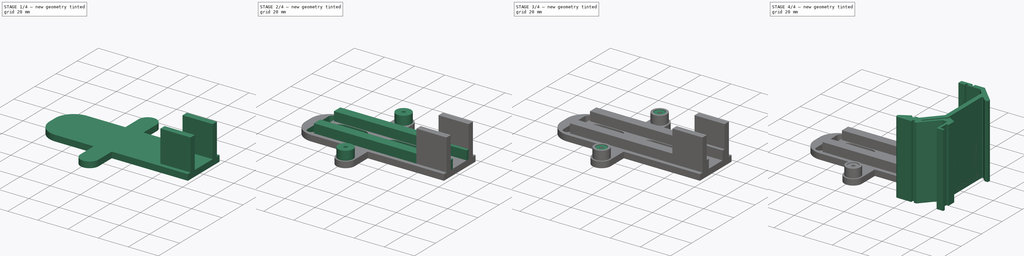
[diagram: build sequence overview — one tinted view per stage of 4, left to right]
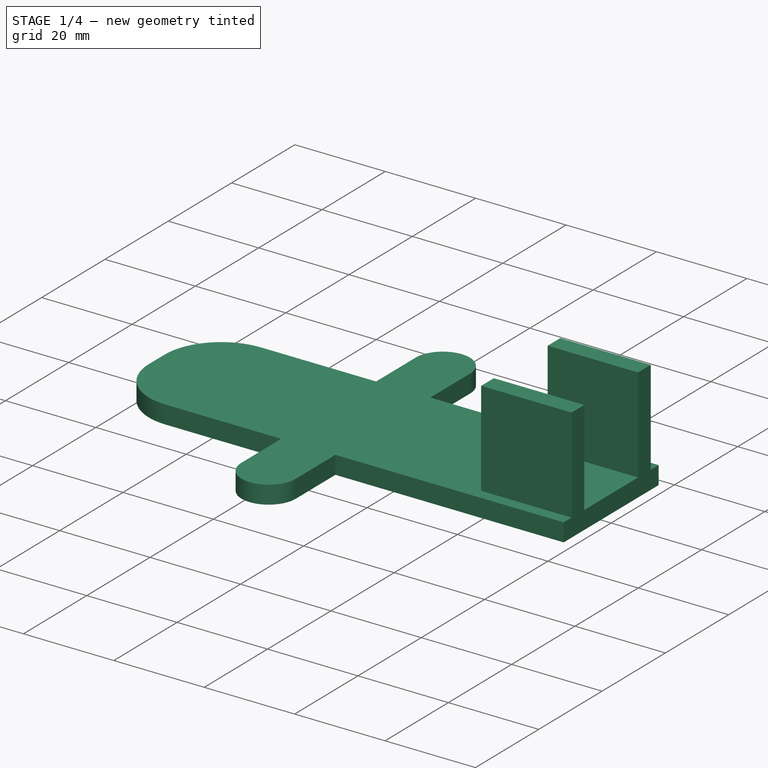
[diagram: stage 1 of 4 — iso view after this stage's code; geometry added in this stage tinted green]
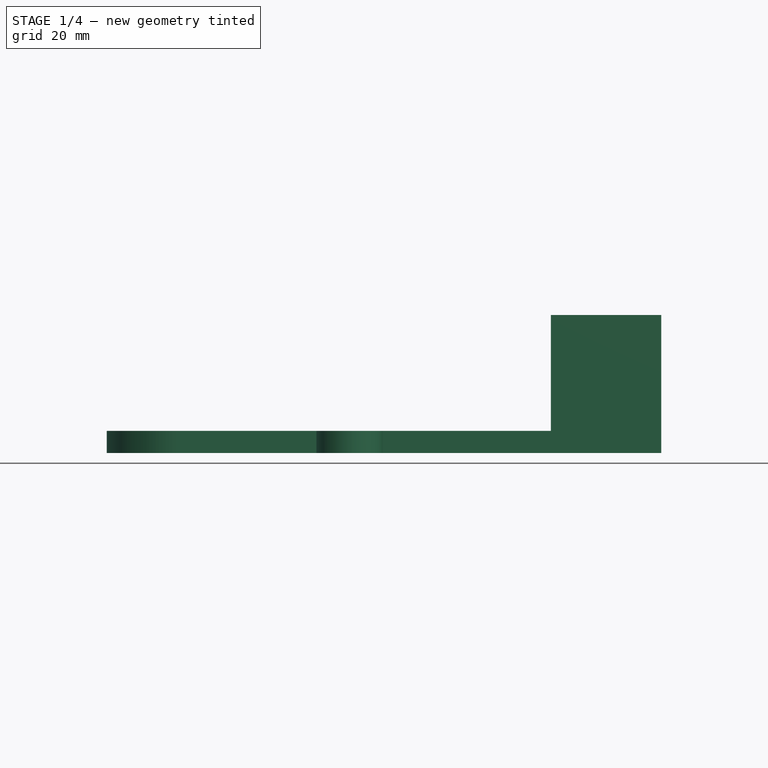
[diagram: stage 1 of 4 — front view after this stage's code; geometry added in this stage tinted green]
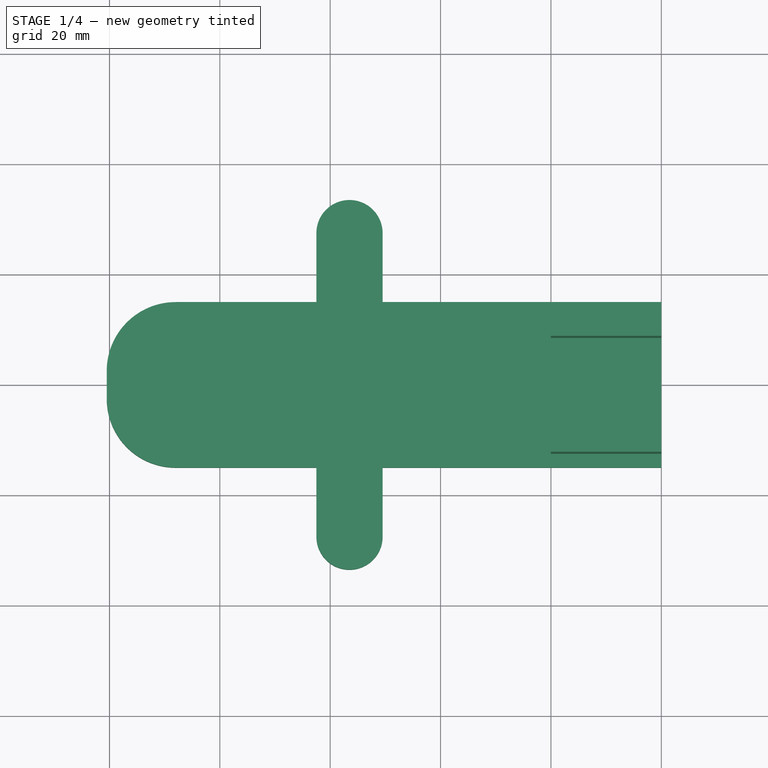
[diagram: stage 1 of 4 — top view after this stage's code; geometry added in this stage tinted green]
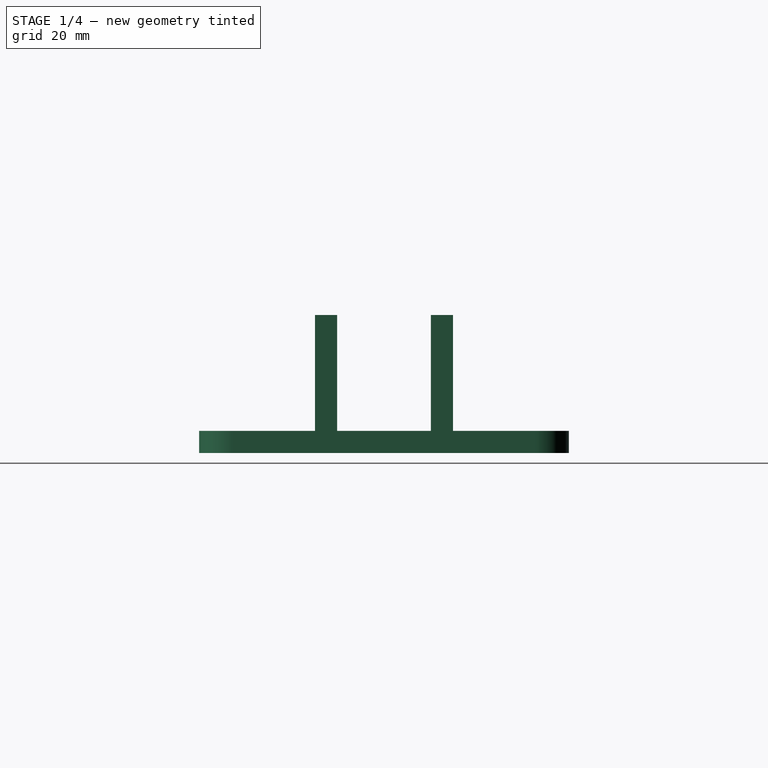
[diagram: stage 1 of 4 — right view after this stage's code; geometry added in this stage tinted green]
FCSTD DOCUMENT  (FreeCAD 0.18R4 (GitTag))
Label: pi_box_din
License: CC-BY 3.0
LicenseURL: http://creativecommons.org/licenses/by/3.0/
objects: Sketcher::SketchObject×8, PartDesign::Pad×6, PartDesign::Hole×3, Spreadsheet::Sheet×1, PartDesign::Pocket×1, PartDesign::Fillet×1, PartDesign::Body×1, App::Part×1, App::DocumentObjectGroup×1
note: 30 computed .brp shape members not serialized (recipe doc carries the construction recipe); baked Part::Feature solids carry a one-line shape summary decoded from their .brp

FEATURE [Spreadsheet::Sheet] Spreadsheet
  cells = A1=pi_box; B1=maat; A2=hoogte; B2(box_h)==31mm; A3=breedte; B3(box_b)==63mm; A4=lengte; B4(box_l)==95mm; A6=schroef; B6(gat_d)==3mm; A7=gat afstand hh; B7(gat_hh)==55mm; A8=gat eth kant; B8(gat_rand)==15mm; A9=gat bevel d; B9(gat_d_bevel)==6mm; A10=gat bevel h; B10(gat_h_bevel)==0.5mm; A11=voetje h; B11(voetje_h)==0.8mm; A12=voetje d; B12(voetje_d)==15mm; A13=voetje rand; B13(voetje_rand)==11mm
FEATURE [Sketcher::SketchObject] Sketch001  label="mountbase000"
  MapMode = 5
  Support = -> [XY_Plane001]
  expr: Constraints[14] = Spreadsheet.box_b / 2
  expr: Constraints[5] = Spreadsheet.box_b / 2 + 25mm
  sketch-geometry (7):
    g0: LineSegment StartX=-88 StartY=15 StartZ=0 EndX=0 EndY=15 EndZ=0
    g1: LineSegment StartX=0 StartY=15 StartZ=0 EndX=0 EndY=-15 EndZ=0
    g2: LineSegment StartX=0 StartY=-15 StartZ=0 EndX=-88 EndY=-15 EndZ=0
    g3: LineSegment StartX=-100.5 StartY=-2.5 StartZ=0 EndX=-100.5 EndY=2.5 EndZ=0
    g4: LineSegment [constr] StartX=-56.5 StartY=50 StartZ=0 EndX=-56.5 EndY=-50 EndZ=0
    g5: ArcOfCircle CenterX=-88 CenterY=2.5 CenterZ=0 NormalX=0 NormalY=0 NormalZ=1 AngleXU=0 Radius=12.5 StartAngle=1.5708 EndAngle=3.14159
    g6: ArcOfCircle CenterX=-88 CenterY=-2.5 CenterZ=0 NormalX=0 NormalY=0 NormalZ=1 AngleXU=0 Radius=12.5 StartAngle=3.14159 EndAngle=4.71239
  constraints (17):
    c: Coincident(g0,g1)
    c: Coincident(g1,g2)
    c: Horizontal(g0)
    c: Horizontal(g2)
    c: DistanceX(g1,g-1) = 0
    c: DistanceX(g4,g-1) = 56.5
    c: Symmetric(g1,g0,g-1)
    c: DistanceY(g1,g-1) = 15
    c: Tangent(g0,g5) = 1.5708
    c: Tangent(g3,g5) = 1.5708
    c: Tangent(g3,g6) = 1.5708
    c: Tangent(g2,g6) = 1.5708
    c: Symmetric(g6,g5,g-1)
    c: Symmetric(g4,g4,g-1)
    c: DistanceX(g2,g4) = 31.5
    c: Distance(g3,g3) = 5
    c: Distance(g4) = 100
FEATURE [Sketcher::SketchObject] Sketch002  label="mountbase001"
  MapMode = 5
  Support = -> [XY_Plane001]
  expr: Constraints[6] = Spreadsheet.box_b / 2 + 25mm
  expr: Constraints[9] = Spreadsheet.gat_hh / 2
  expr: Constraints[10] = Spreadsheet.gat_hh
  sketch-geometry (5):
    g0: ArcOfCircle CenterX=-56.5 CenterY=27.5 CenterZ=0 NormalX=0 NormalY=0 NormalZ=1 AngleXU=0 Radius=6 StartAngle=1e-16 EndAngle=3.14159
    g1: ArcOfCircle CenterX=-56.5 CenterY=-27.5 CenterZ=0 NormalX=0 NormalY=0 NormalZ=1 AngleXU=0 Radius=6 StartAngle=3.14159 EndAngle=6.28319
    g2: LineSegment StartX=-62.5 StartY=27.5 StartZ=0 EndX=-62.5 EndY=-27.5 EndZ=0
    g3: LineSegment StartX=-50.5 StartY=27.5 StartZ=0 EndX=-50.5 EndY=-27.5 EndZ=0
    g4: LineSegment [constr] StartX=-56.5 StartY=50 StartZ=0 EndX=-56.5 EndY=-50 EndZ=0
  constraints (13):
    c: Tangent(g0,g3) = 1.5708
    c: Tangent(g0,g2) = -1.5708
    c: Tangent(g2,g1) = -1.5708
    c: Tangent(g3,g1) = 1.5708
    c: Vertical(g2)
    c: Equal(g0,g1)
    c: DistanceX(g4,g-1) = 56.5
    c: DistanceX(g4,g0) = 0
    c: DistanceX(g0,g0) = 12
    c: DistanceY(g-1,g0) = 27.5
    c: DistanceY(g1,g0) = 55
    c: Symmetric(g4,g4,g-1)
    c: Distance(g4) = 100
FEATURE [PartDesign::Pad] Pad001  label="Pad000"
  Length = 4
  Length2 = 100
  Profile = -> Sketch001
  Type = 0
FEATURE [PartDesign::Pad] Pad002  label="Pad001"
  BaseFeature = -> Pad001
  Length = 4
  Length2 = 100
  Profile = -> Sketch002
  Type = 0
FEATURE [Sketcher::SketchObject] Sketch003  label="mountbase002"
  MapMode = 5
  Support = -> [XY_Plane001]
  sketch-geometry (8):
    g0: LineSegment StartX=-20 StartY=-8.5 StartZ=0 EndX=0 EndY=-8.5 EndZ=0
    g1: LineSegment StartX=0 StartY=-8.5 StartZ=0 EndX=0 EndY=-12.5 EndZ=0
    g2: LineSegment StartX=0 StartY=-12.5 StartZ=0 EndX=-20 EndY=-12.5 EndZ=0
    g3: LineSegment StartX=-20 StartY=-12.5 StartZ=0 EndX=-20 EndY=-8.5 EndZ=0
    g4: LineSegment StartX=-20 StartY=12.5 StartZ=0 EndX=0 EndY=12.5 EndZ=0
    g5: LineSegment StartX=0 StartY=12.5 StartZ=0 EndX=0 EndY=8.5 EndZ=0
    g6: LineSegment StartX=0 StartY=8.5 StartZ=0 EndX=-20 EndY=8.5 EndZ=0
    g7: LineSegment StartX=-20 StartY=8.5 StartZ=0 EndX=-20 EndY=12.5 EndZ=0
  constraints (23):
    c: Coincident(g0,g1)
    c: Coincident(g1,g2)
    c: Coincident(g2,g3)
    c: Coincident(g3,g0)
    c: Horizontal(g0)
    c: Horizontal(g2)
    c: Vertical(g1)
    c: Vertical(g3)
    c: Coincident(g4,g5)
    c: Coincident(g5,g6)
    c: Coincident(g6,g7)
    c: Coincident(g7,g4)
    c: Horizontal(g4)
    c: Horizontal(g6)
    c: Vertical(g5)
    c: Vertical(g7)
    c: Symmetric(g5,g0,g-1)
    c: Distance(g5) = 4
    c: Distance(g1) = 4
    c: DistanceX(g-1,g4) = 0
    c: Distance(g6) = 20
    c: Distance(g0) = 20
    c: DistanceY(g2,g4) = 25
FEATURE [PartDesign::Pad] Pad003  label="Pad002"
  BaseFeature = -> Pad002
  Length = 25
  Length2 = 100
  Profile = -> Sketch003
  Type = 0
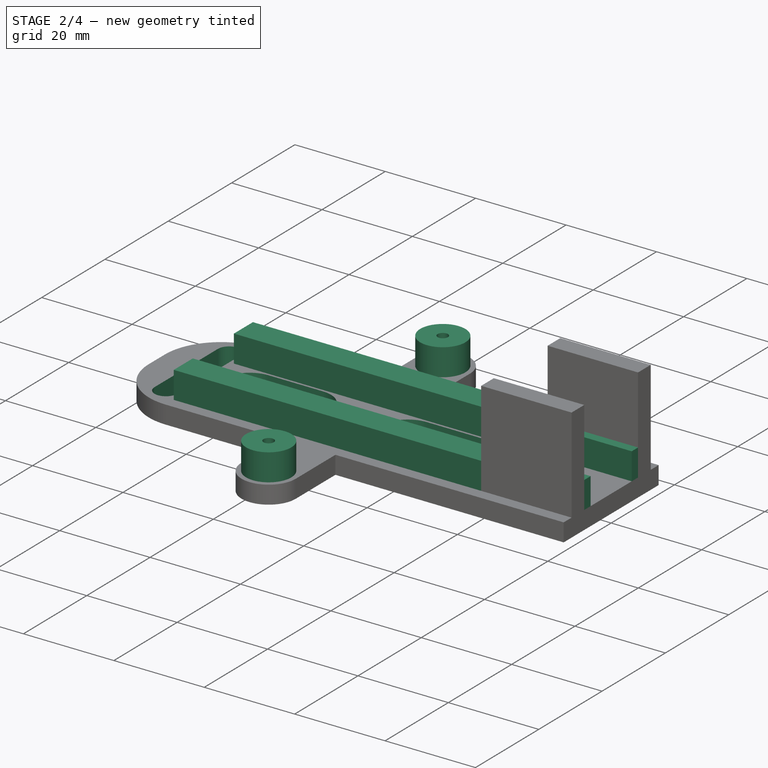
[diagram: stage 2 of 4 — iso view after this stage's code; geometry added in this stage tinted green]
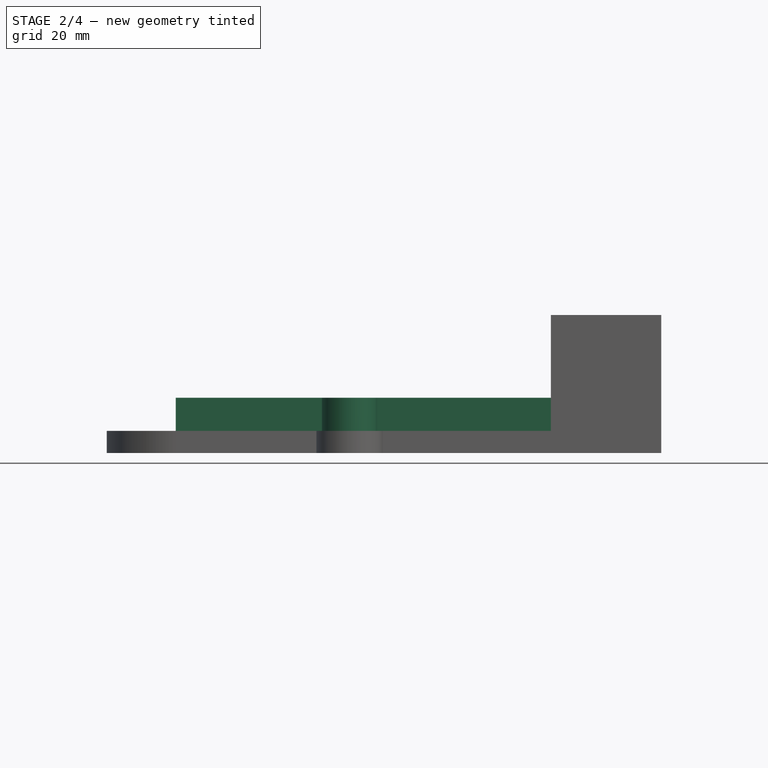
[diagram: stage 2 of 4 — front view after this stage's code; geometry added in this stage tinted green]
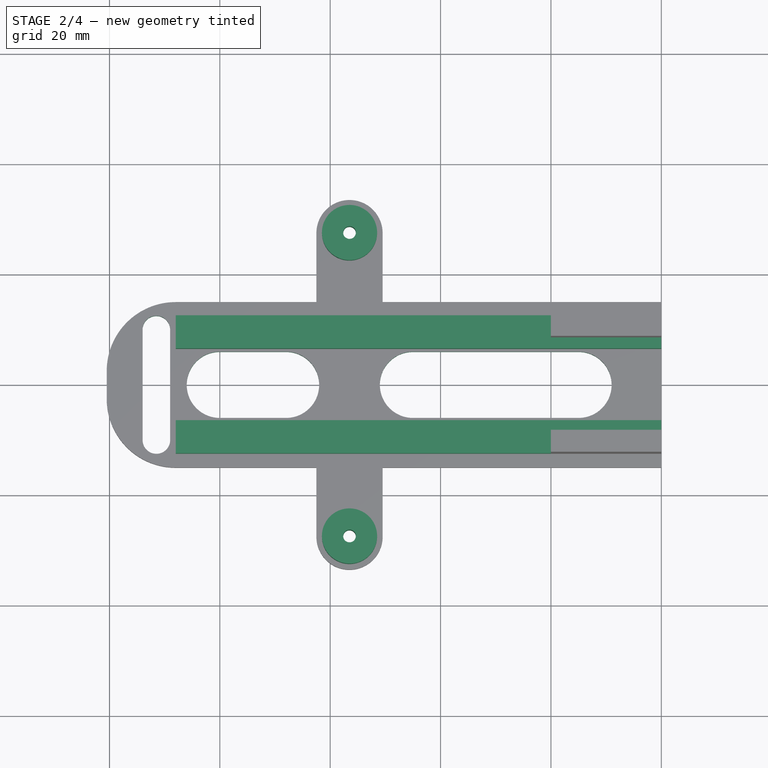
[diagram: stage 2 of 4 — top view after this stage's code; geometry added in this stage tinted green]
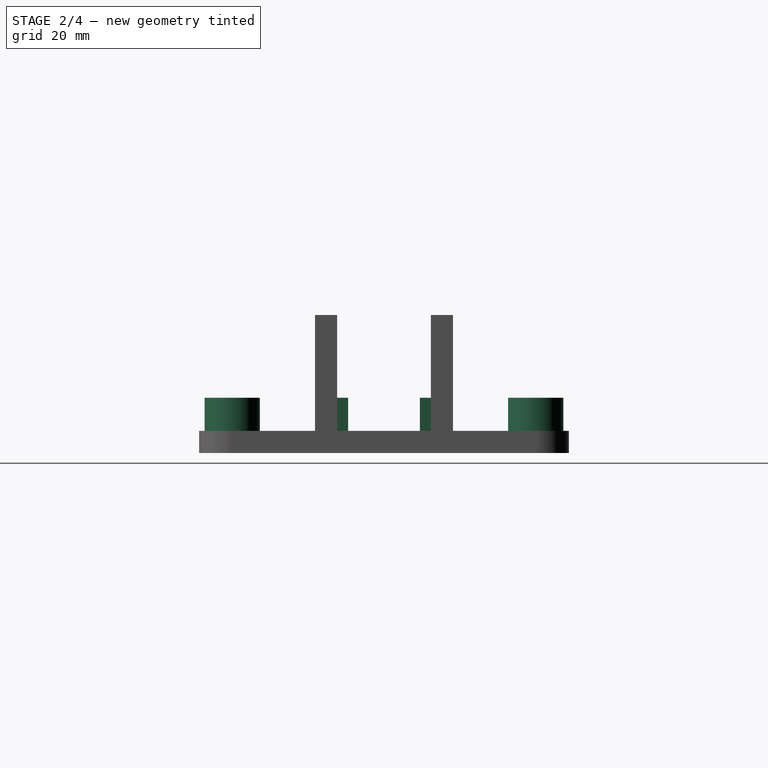
[diagram: stage 2 of 4 — right view after this stage's code; geometry added in this stage tinted green]
FEATURE [Sketcher::SketchObject] Sketch004  label="mountbase003"
  MapMode = 5
  Support = -> [XY_Plane001]
  expr: Constraints[20] = Spreadsheet.box_b + 25mm
  expr: Constraints[21] = Spreadsheet.box_b + 25mm
  sketch-geometry (8):
    g0: LineSegment StartX=-88 StartY=-6.5 StartZ=0 EndX=0 EndY=-6.5 EndZ=0
    g1: LineSegment StartX=0 StartY=-6.5 StartZ=0 EndX=0 EndY=-12.5 EndZ=0
    g2: LineSegment StartX=0 StartY=-12.5 StartZ=0 EndX=-88 EndY=-12.5 EndZ=0
    g3: LineSegment StartX=-88 StartY=-12.5 StartZ=0 EndX=-88 EndY=-6.5 EndZ=0
    g4: LineSegment StartX=-88 StartY=12.5 StartZ=0 EndX=0 EndY=12.5 EndZ=0
    g5: LineSegment StartX=0 StartY=12.5 StartZ=0 EndX=0 EndY=6.5 EndZ=0
    g6: LineSegment StartX=0 StartY=6.5 StartZ=0 EndX=-88 EndY=6.5 EndZ=0
    g7: LineSegment StartX=-88 StartY=6.5 StartZ=0 EndX=-88 EndY=12.5 EndZ=0
  constraints (23):
    c: Coincident(g0,g1)
    c: Coincident(g1,g2)
    c: Coincident(g2,g3)
    c: Coincident(g3,g0)
    c: Horizontal(g0)
    c: Horizontal(g2)
    c: Vertical(g1)
    c: Vertical(g3)
    c: Coincident(g4,g5)
    c: Coincident(g5,g6)
    c: Coincident(g6,g7)
    c: Coincident(g7,g4)
    c: Horizontal(g4)
    c: Horizontal(g6)
    c: Vertical(g5)
    c: Vertical(g7)
    c: Symmetric(g5,g0,g-1)
    c: Distance(g5) = 6
    c: Distance(g1) = 6
    c: DistanceX(g-1,g4) = 0
    c: Distance(g6) = 88
    c: Distance(g0) = 88
    c: DistanceY(g2,g4) = 25
FEATURE [PartDesign::Pad] Pad004  label="Pad003"
  BaseFeature = -> Pad003
  Length = 10
  Length2 = 100
  Profile = -> Sketch004
  Type = 0
FEATURE [Sketcher::SketchObject] Sketch005  label="mountbase004"
  MapMode = 5
  Support = -> [XY_Plane001]
  expr: Constraints[4] = Spreadsheet.box_b / 2 + 25mm
  expr: Constraints[3] = Spreadsheet.gat_hh / 2
  sketch-geometry (2):
    g0: Circle CenterX=-56.5 CenterY=27.5 CenterZ=0 NormalX=0 NormalY=0 NormalZ=1 AngleXU=0 Radius=5
    g1: Circle CenterX=-56.5 CenterY=-27.5 CenterZ=0 NormalX=0 NormalY=0 NormalZ=1 AngleXU=0 Radius=5
  constraints (5):
    c: Radius(g1) = 5
    c: Radius(g0) = 5
    c: Symmetric(g1,g0,g-1)
    c: DistanceY(g-1,g0) = 27.5
    c: DistanceX(g0,g-1) = 56.5
FEATURE [PartDesign::Pad] Pad005  label="Pad004"
  BaseFeature = -> Pad004
  Length = 10
  Length2 = 100
  Profile = -> Sketch005
  Type = 0
FEATURE [Sketcher::SketchObject] Sketch006  label="mountbase005"
  MapMode = 5
  Support = -> [XY_Plane001]
  expr: Constraints[30] = Spreadsheet.gat_hh / 2
  expr: Constraints[29] = Spreadsheet.box_b / 2 + 25mm
  sketch-geometry (14):
    g0: ArcOfCircle CenterX=-91.5 CenterY=10 CenterZ=0 NormalX=0 NormalY=0 NormalZ=1 AngleXU=0 Radius=2.5 StartAngle=0 EndAngle=3.14159
    g1: ArcOfCircle CenterX=-91.5 CenterY=-10 CenterZ=0 NormalX=0 NormalY=0 NormalZ=1 AngleXU=0 Radius=2.5 StartAngle=3.14159 EndAngle=6.28319
    g2: LineSegment StartX=-94 StartY=10 StartZ=0 EndX=-94 EndY=-10 EndZ=0
    g3: LineSegment StartX=-89 StartY=10 StartZ=0 EndX=-89 EndY=-10 EndZ=0
    g4: ArcOfCircle CenterX=-45 CenterY=0 CenterZ=0 NormalX=0 NormalY=0 NormalZ=1 AngleXU=0 Radius=6 StartAngle=1.5708 EndAngle=4.71239
    g5: ArcOfCircle CenterX=-15 CenterY=3e-16 CenterZ=0 NormalX=0 NormalY=0 NormalZ=1 AngleXU=0 Radius=6 StartAngle=4.71239 EndAngle=7.85398
    g6: LineSegment StartX=-45 StartY=-6 StartZ=0 EndX=-15 EndY=-6 EndZ=0
    g7: LineSegment StartX=-45 StartY=6 StartZ=0 EndX=-15 EndY=6 EndZ=0
    g8: ArcOfCircle CenterX=-80 CenterY=-2e-16 CenterZ=0 NormalX=0 NormalY=0 NormalZ=1 AngleXU=0 Radius=6 StartAngle=1.5708 EndAngle=4.71239
    g9: ArcOfCircle CenterX=-68 CenterY=-9e-16 CenterZ=0 NormalX=0 NormalY=0 NormalZ=1 AngleXU=0 Radius=6 StartAngle=4.71239 EndAngle=7.85398
    g10: LineSegment StartX=-80 StartY=-6 StartZ=0 EndX=-68 EndY=-6 EndZ=0
    g11: LineSegment StartX=-80 StartY=6 StartZ=0 EndX=-68 EndY=6 EndZ=0
    g12: Circle CenterX=-56.5 CenterY=27.5 CenterZ=0 NormalX=0 NormalY=0 NormalZ=1 AngleXU=0 Radius=1.15
    g13: Circle CenterX=-56.5 CenterY=-27.5 CenterZ=0 NormalX=0 NormalY=0 NormalZ=1 AngleXU=0 Radius=1.15
  constraints (33):
    c: Tangent(g0,g3) = 1.5708
    c: Tangent(g0,g2) = -1.5708
    c: Tangent(g2,g1) = -1.5708
    c: Tangent(g3,g1) = 1.5708
    c: Vertical(g2)
    c: Symmetric(g0,g1,g-1)
    c: DistanceX(g0,g0) = 5
    c: Distance(g2) = 20
    c: DistanceX(g1,g-1) = 91.5
    c: Tangent(g4,g7) = 1.5708
    c: Tangent(g4,g6) = -1.5708
    c: Tangent(g6,g5) = -1.5708
    c: Tangent(g7,g5) = 1.5708
    c: Horizontal(g6)
    c: Equal(g4,g5)
    c: PointOnObject(g4,g-1)
    c: DistanceX(g5,g-1) = 15
    c: DistanceX(g4,g5) = 30
    c: DistanceY(g5,g5) = 12
    c: Tangent(g8,g11) = 1.5708
    c: Tangent(g8,g10) = -1.5708
    c: Tangent(g10,g9) = -1.5708
    c: Tangent(g11,g9) = 1.5708
    c: Horizontal(g10)
    c: Symmetric(g8,g8,g-1)
    c: DistanceY(g8,g8) = 12
    c: DistanceX(g9,g4) = 23
    c: DistanceX(g8,g9) = 12
    c: Radius(g12) = 1.15
    c: DistanceX(g12,g-1) = 56.5
    c: DistanceY(g-1,g12) = 27.5
    c: Radius(g13) = 1.15
    c: Symmetric(g13,g12,g-1)
FEATURE [PartDesign::Pocket] Pocket
  BaseFeature = -> Pad005
  Length = 5
  Length2 = 100
  Midplane = true
  Profile = -> Sketch006
  Reversed = true
  Type = 1
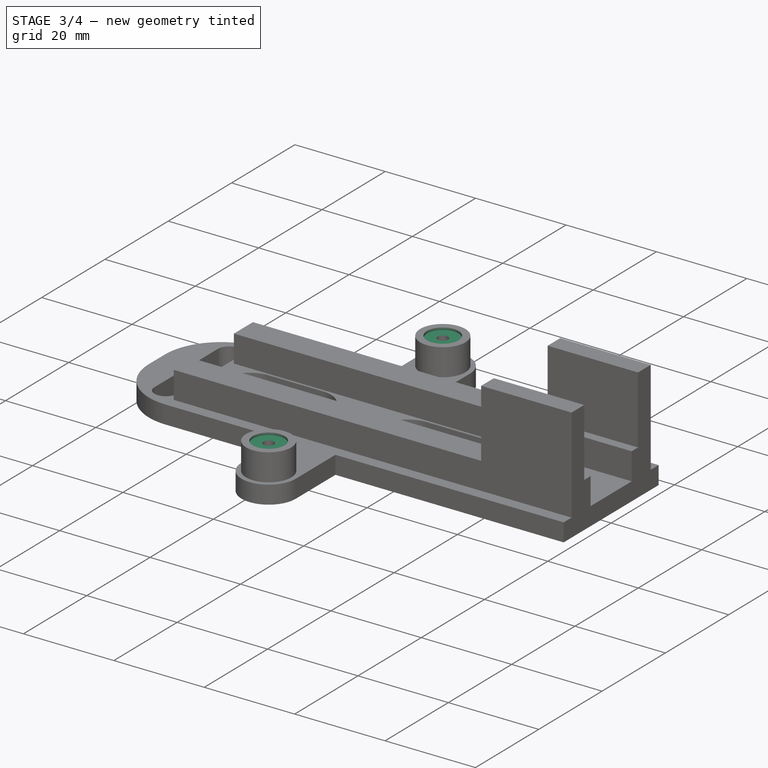
[diagram: stage 3 of 4 — iso view after this stage's code; geometry added in this stage tinted green]
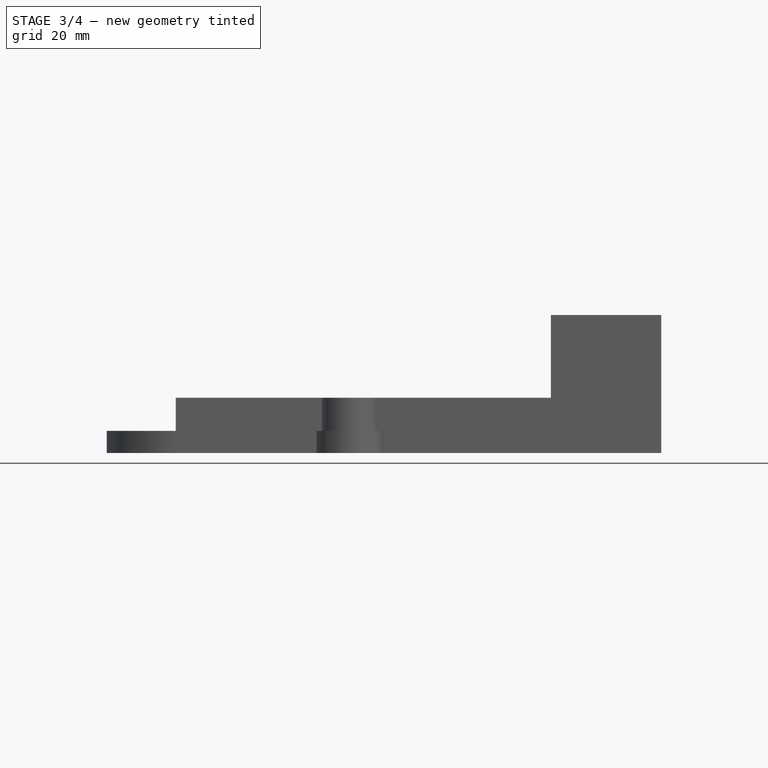
[diagram: stage 3 of 4 — front view after this stage's code; geometry added in this stage tinted green]
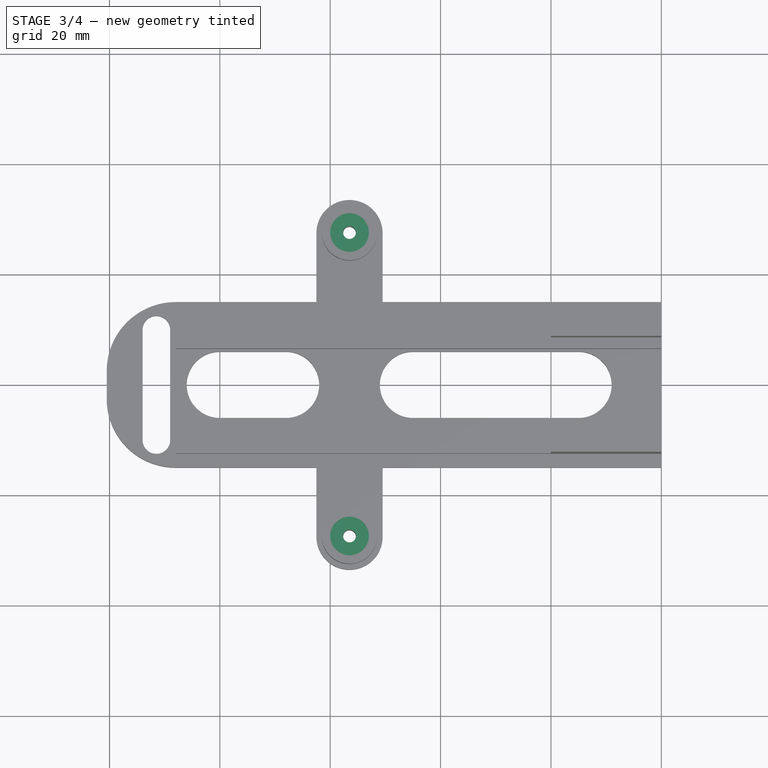
[diagram: stage 3 of 4 — top view after this stage's code; geometry added in this stage tinted green]
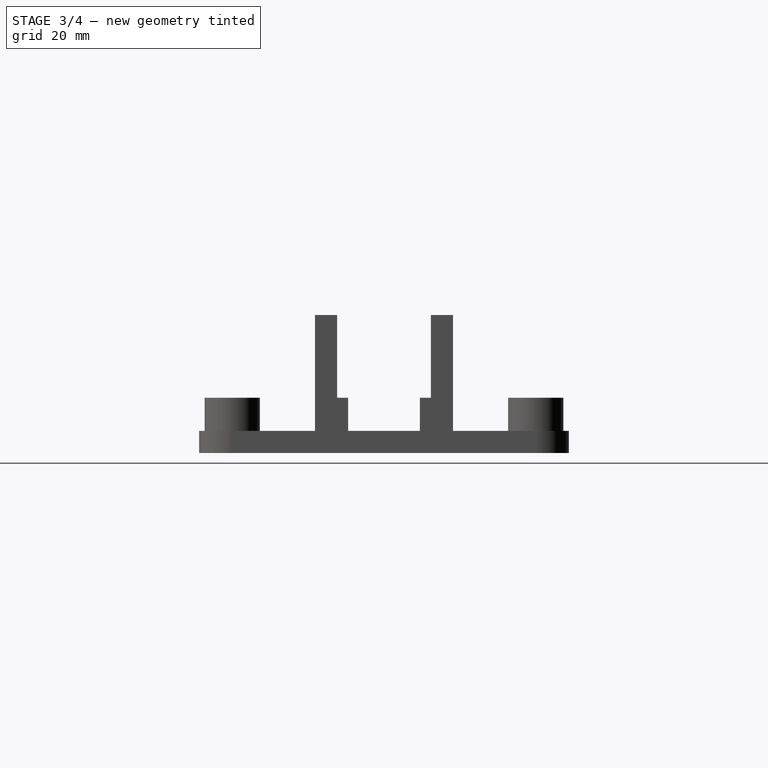
[diagram: stage 3 of 4 — right view after this stage's code; geometry added in this stage tinted green]
FEATURE [PartDesign::Hole] Hole
  BaseFeature = -> Pocket
  Depth = 0.5
  DepthType = 0
  Diameter = 7
  DrillPoint = 0
  DrillPointAngle = 118
  HoleCutCountersinkAngle = 90
  HoleCutDepth = 0
  HoleCutDiameter = 0
  HoleCutType = 0
  ModelActualThread = false
  Profile = -> Pocket [Face85]
  Tapered = false
  TaperedAngle = 91
  ThreadAngle = 0
  ThreadClass = 0
  ThreadCutOffInner = 0
  ThreadCutOffOuter = 0
  ThreadDirection = 0
  ThreadFit = 0
  ThreadPitch = 0
  ThreadSize = 0
  ThreadType = 0
  Threaded = false
FEATURE [PartDesign::Hole] Hole001
  BaseFeature = -> Hole
  Depth = 0.5
  DepthType = 0
  Diameter = 7
  DrillPoint = 0
  DrillPointAngle = 118
  HoleCutCountersinkAngle = 90
  HoleCutDepth = 0
  HoleCutDiameter = 0
  HoleCutType = 0
  ModelActualThread = false
  Profile = -> Hole [Face90]
  Tapered = false
  TaperedAngle = 90
  ThreadAngle = 0
  ThreadClass = 0
  ThreadCutOffInner = 0
  ThreadCutOffOuter = 0
  ThreadDirection = 0
  ThreadFit = 0
  ThreadPitch = 0
  ThreadSize = 0
  ThreadType = 0
  Threaded = false
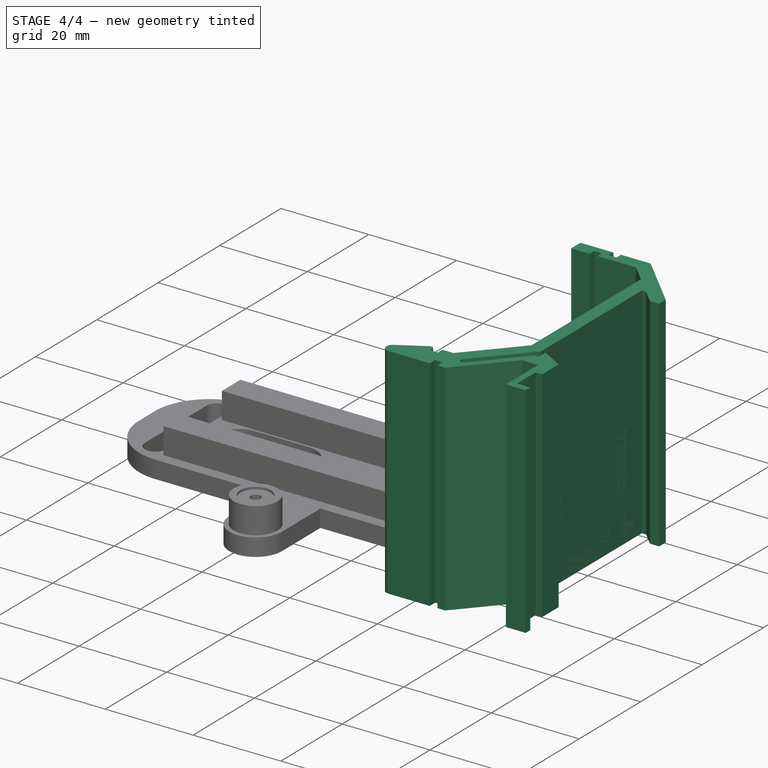
[diagram: stage 4 of 4 — iso view after this stage's code; geometry added in this stage tinted green]
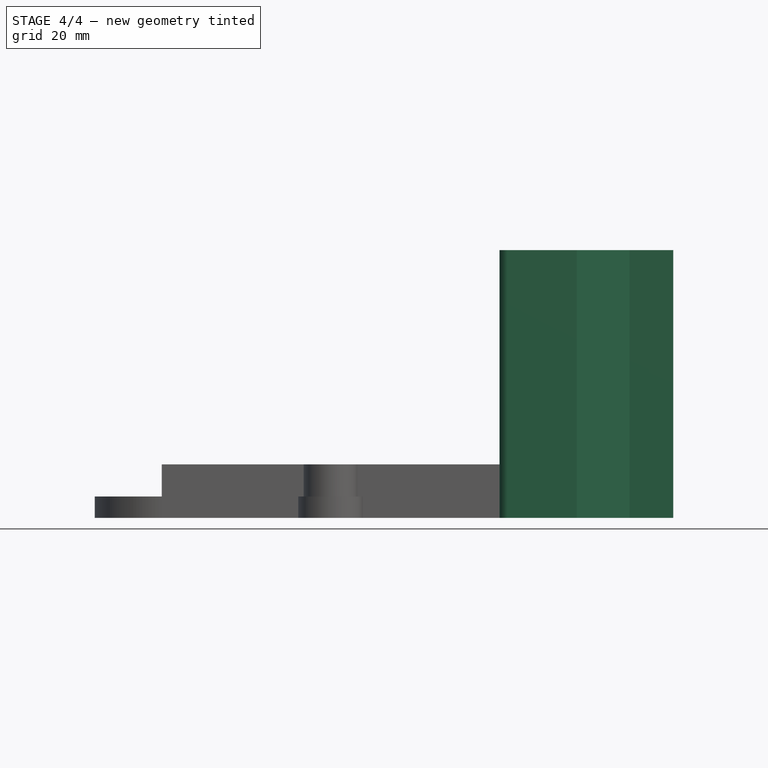
[diagram: stage 4 of 4 — front view after this stage's code; geometry added in this stage tinted green]
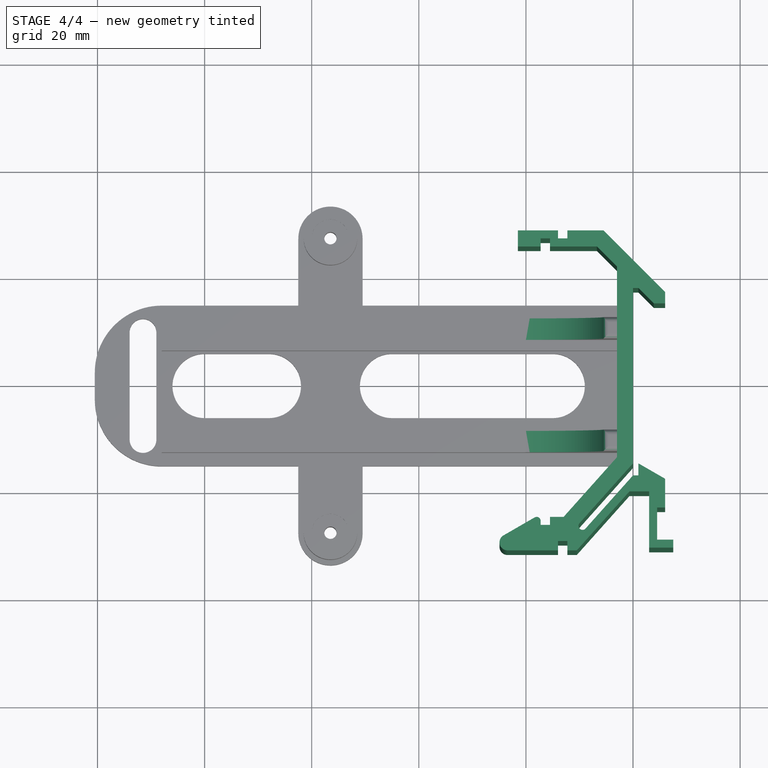
[diagram: stage 4 of 4 — top view after this stage's code; geometry added in this stage tinted green]
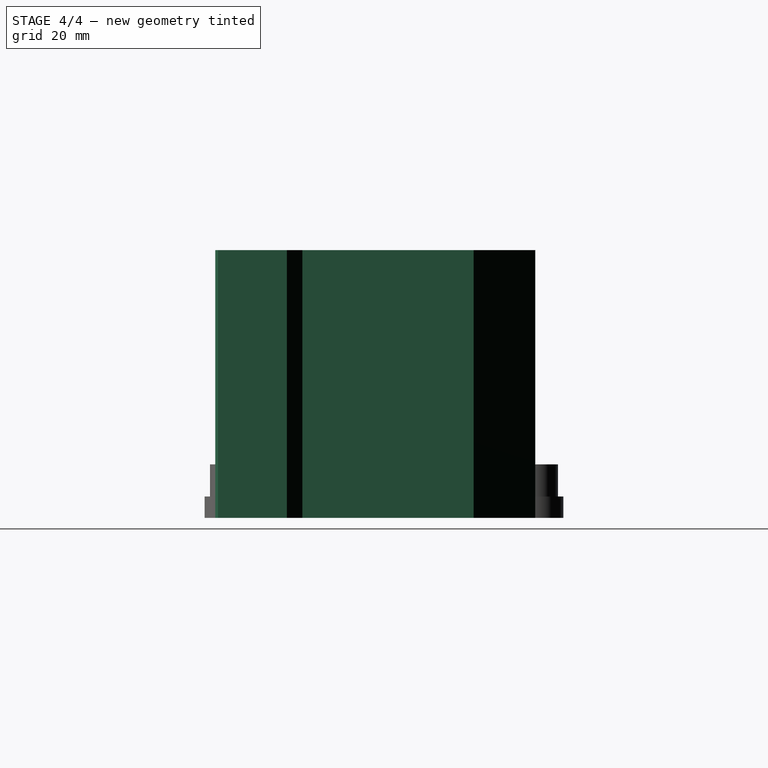
[diagram: stage 4 of 4 — right view after this stage's code; geometry added in this stage tinted green]
FEATURE [Sketcher::SketchObject] Sketch
  MapMode = 2
  sketch-geometry (47):
    g0: LineSegment StartX=0 StartY=17.5 StartZ=0 EndX=0 EndY=-15.249 EndZ=0
    g1: LineSegment StartX=-21.5 StartY=25.25 StartZ=0 EndX=-17.25 EndY=25.25 EndZ=0
    g2: LineSegment StartX=-17.25 StartY=25.25 StartZ=0 EndX=-17.25 EndY=26.75 EndZ=0
    g3: LineSegment StartX=-17.25 StartY=26.75 StartZ=0 EndX=-15.5 EndY=26.75 EndZ=0
    g4: LineSegment StartX=-15.5 StartY=26.75 StartZ=0 EndX=-15.5 EndY=25.25 EndZ=0
    g5: LineSegment StartX=-15.5 StartY=25.25 StartZ=0 EndX=-6.75 EndY=25.25 EndZ=0
    g6: LineSegment StartX=-6.75 StartY=25.25 StartZ=0 EndX=-3 EndY=21.5 EndZ=0
    g7: LineSegment StartX=-3 StartY=21.5 StartZ=0 EndX=-3 EndY=-14.1038 EndZ=0
    g8: LineSegment StartX=-3 StartY=-14.1038 StartZ=0 EndX=-12.9613 EndY=-25.25 EndZ=0
    g9: LineSegment StartX=-12.9613 StartY=-25.25 StartZ=0 EndX=-15.5 EndY=-25.25 EndZ=0
    g10: LineSegment StartX=-15.5 StartY=-25.25 StartZ=0 EndX=-15.5 EndY=-26.75 EndZ=0
    g11: LineSegment StartX=-15.5 StartY=-26.75 StartZ=0 EndX=-17.25 EndY=-26.75 EndZ=0
    g12: LineSegment StartX=-18.375 StartY=-25.3505 StartZ=0 EndX=-24.1782 EndY=-28.701 EndZ=0
    g13: LineSegment StartX=-23.4282 StartY=-31.5 StartZ=0 EndX=-14 EndY=-31.5 EndZ=0
    g14: LineSegment StartX=-14 StartY=-31.5 StartZ=0 EndX=-14 EndY=-29.75 EndZ=0
    g15: LineSegment StartX=-14 StartY=-29.75 StartZ=0 EndX=-12.25 EndY=-29.75 EndZ=0
    g16: LineSegment StartX=-10.5 StartY=-31.5 StartZ=0 EndX=-0.669356 EndY=-20.5 EndZ=0
    g17: LineSegment StartX=-0.669356 StartY=-20.5 StartZ=0 EndX=3 EndY=-20.5 EndZ=0
    g18: LineSegment StartX=3 StartY=-31 StartZ=0 EndX=7.5 EndY=-31 EndZ=0
    g19: LineSegment StartX=6 StartY=-18.1368 StartZ=0 EndX=1 EndY=-15.25 EndZ=0
    g20: LineSegment StartX=1 StartY=-15.25 StartZ=0 EndX=1 EndY=-17.5 EndZ=0
    g21: LineSegment StartX=1 StartY=-17.5 StartZ=0 EndX=0 EndY=-17.5 EndZ=0
    g22: LineSegment StartX=0 StartY=-17.5 StartZ=0 EndX=-8.86463 EndY=-27.4191 EndZ=0
    g23: LineSegment StartX=-9.98307 StartY=-26.4195 StartZ=0 EndX=0 EndY=-15.249 EndZ=0
    g24: LineSegment StartX=-21.5 StartY=25.25 StartZ=0 EndX=-21.5 EndY=28.25 EndZ=0
    g25: LineSegment StartX=-21.5 StartY=28.25 StartZ=0 EndX=-14 EndY=28.25 EndZ=0
    g26: LineSegment StartX=6 StartY=14.6213 StartZ=0 EndX=3.87868 EndY=14.6213 EndZ=0
    g27: LineSegment StartX=3.87868 StartY=14.6213 StartZ=0 EndX=1 EndY=17.5 EndZ=0
    g28: LineSegment StartX=1 StartY=17.5 StartZ=0 EndX=0 EndY=17.5 EndZ=0
    g29: LineSegment StartX=-12.25 StartY=-29.75 StartZ=0 EndX=-12.25 EndY=-31.5 EndZ=0
    g30: LineSegment StartX=-5.50736 StartY=28.25 StartZ=0 EndX=6 EndY=16.7426 EndZ=0
    g31: LineSegment StartX=6 StartY=16.7426 StartZ=0 EndX=6 EndY=14.6213 EndZ=0
    g32: LineSegment StartX=3 StartY=-20.5 StartZ=0 EndX=3 EndY=-31 EndZ=0
    g33: LineSegment StartX=6 StartY=-18.1368 StartZ=0 EndX=6 EndY=-23.5 EndZ=0
    g34: LineSegment StartX=6 StartY=-23.5 StartZ=0 EndX=4.5 EndY=-23.5 EndZ=0
    g35: LineSegment StartX=4.5 StartY=-23.5 StartZ=0 EndX=4.5 EndY=-29.5 EndZ=0
    g36: LineSegment StartX=4.5 StartY=-29.5 StartZ=0 EndX=7.5 EndY=-29.5 EndZ=0
    g37: LineSegment StartX=7.5 StartY=-29.5 StartZ=0 EndX=7.5 EndY=-31 EndZ=0
    g38: LineSegment StartX=-12.25 StartY=28.25 StartZ=0 EndX=-12.25 EndY=26.75 EndZ=0
    g39: LineSegment StartX=-12.25 StartY=26.75 StartZ=0 EndX=-14 EndY=26.75 EndZ=0
    g40: LineSegment StartX=-14 StartY=26.75 StartZ=0 EndX=-14 EndY=28.25 EndZ=0
    g41: LineSegment StartX=-12.25 StartY=28.25 StartZ=0 EndX=-5.50736 EndY=28.25 EndZ=0
    g42: ArcOfCircle CenterX=-18 CenterY=-26 CenterZ=0 NormalX=0 NormalY=0 NormalZ=1 AngleXU=0 Radius=0.75 StartAngle=6.28318 EndAngle=8.37758
    g43: LineSegment StartX=-17.25 StartY=-26 StartZ=0 EndX=-17.25 EndY=-26.75 EndZ=0
    g44: LineSegment StartX=-12.25 StartY=-31.5 StartZ=0 EndX=-10.5 EndY=-31.5 EndZ=0
    g45: ArcOfCircle CenterX=-23.4282 CenterY=-30 CenterZ=0 NormalX=0 NormalY=0 NormalZ=1 AngleXU=0 Radius=1.5 StartAngle=2.0944 EndAngle=4.71239
    g46: ArcOfCircle CenterX=-9.42385 CenterY=-26.9193 CenterZ=0 NormalX=0 NormalY=0 NormalZ=1 AngleXU=0 Radius=0.75 StartAngle=2.41228 EndAngle=5.55386
  constraints (139):
    c: PointOnObject(g0,g-2)
    c: Vertical(g0)
    c: DistanceY(g0) = 17.5
    c: Coincident(g1,g2)
    c: Coincident(g2,g3)
    c: Coincident(g3,g4)
    c: Coincident(g4,g5)
    c: Horizontal(g5)
    c: Coincident(g5,g6)
    c: Coincident(g6,g7)
    c: Vertical(g7)
    c: Coincident(g7,g8)
    c: Coincident(g8,g9)
    c: Coincident(g9,g10)
    c: Vertical(g10)
    c: Coincident(g10,g11)
    c: Horizontal(g11)
    c: Horizontal(g13)
    c: Coincident(g13,g14)
    c: Vertical(g14)
    c: Coincident(g14,g15)
    c: Horizontal(g15)
    c: Coincident(g16,g17)
    c: Horizontal(g17)
    c: Vertical(g20)
    c: Coincident(g20,g21)
    c: Horizontal(g21)
    c: Coincident(g21,g22)
    c: Coincident(g23,g0)
    c: Coincident(g1,g24)
    c: Vertical(g24)
    c: Coincident(g24,g25)
    c: Horizontal(g25)
    c: Horizontal(g26)
    c: Coincident(g26,g27)
    c: Coincident(g27,g28)
    c: Coincident(g28,g0)
    c: Horizontal(g28)
    c: DistanceX(g6) = -3
    c: Horizontal(g9)
    c: Parallel(g23,g8)
    c: DistanceX(g9) = -15.5
    c: DistanceY(g10) = -26.75
    c: DistanceX(g9,g11) = -1.75
    c: Distance(g7,g23) = 3
    c: Parallel(g22,g23)
    c: Parallel(g16,g22)
    c: DistanceY(g10) = -1.5
    c: Distance(g22,g23) = 1.5
    c: Distance(g22,g16) = 1.5
    c: DistanceX(g14,g10) = -1.5
    c: DistanceY(g10,g14) = -3
    c: Coincident(g15,g29)
    c: Vertical(g29)
    c: Equal(g14,g15)
    c: Equal(g15,g11)
    c: Horizontal(g18)
    c: Angle(g0,g27) = 0.785398
    c: DistanceX(g28) = -1
    c: Coincident(g30,g31)
    c: Coincident(g31,g26)
    c: Vertical(g31)
    c: Equal(g31,g26)
    c: Parallel(g27,g30)
    c: Distance(g17,g21) = 3
    c: DistanceY(g41,g5) = -3
    c: Horizontal(g3)
    c: Horizontal(g1)
    c: Vertical(g2)
    c: Vertical(g4)
    c: DistanceY(g4) = -1.5
    c: DistanceX(g4) = -15.5
    c: DistanceY(g10,g3) = 53.5
    c: Distance(g26,g30) = 3
    c: DistanceY(g20) = -17.5
    c: Equal(g21,g28)
    c: DistanceX(g26) = 6
    c: DistanceX(g19) = 6
    c: Angle(g19,g0) = 2.0944
    c: Coincident(g32,g17)
    c: Coincident(g32,g18)
    c: Vertical(g32)
    c: Coincident(g19,g33)
    c: Vertical(g33)
    c: Coincident(g33,g34)
    c: Horizontal(g34)
    c: Coincident(g34,g35)
    c: Vertical(g35)
    c: Coincident(g35,g36)
    c: Horizontal(g36)
    c: Coincident(g36,g37)
    c: Coincident(g37,g18)
    c: Vertical(g37)
    c: DistanceX(g34) = -1.5
    c: DistanceX(g20) = 1
    c: Coincident(g38,g39)
    c: Coincident(g39,g40)
    c: Vertical(g38)
    c: Vertical(g40)
    c: Tangent(g25,g41)
    c: Coincident(g40,g25)
    c: Coincident(g38,g41)
    c: Equal(g4,g40)
    c: DistanceX(g3,g39) = 1.5
    c: Tangent(g12,g42)
    c: Radius(g42) = 0.75
    c: Coincident(g43,g42)
    c: Coincident(g43,g11)
    c: Vertical(g43)
    c: DistanceY(g42,g11) = -0.75
    c: DistanceY(g37) = -1.5
    c: DistanceY(g35) = -6
    c: Coincident(g44,g29)
    c: Coincident(g44,g16)
    c: Horizontal(g44)
    c: Equal(g29,g14)
    c: Angle(g13,g12) = 0.523599
    c: Equal(g44,g29)
    c: DistanceX(g3) = 1.75
    c: Equal(g4,g2)
    c: Distance(g17,g33) = 3
    c: DistanceX(g18) = 4.5
    c: DistanceY(g32) = -10.5
    c: Coincident(g20,g19)
    c: DistanceY(g20) = -2.25
    c: DistanceX(g1) = -21.5
    c: Distance(g6,g30) = 3
    c: Tangent(g12,g45)
    c: Tangent(g13,g45)
    c: Radius(g45) = 1.5
    c: Coincident(g46,g23)
    c: Coincident(g46,g22)
    c: Tangent(g46,g23)
    c: Tangent(g46,g22)
    c: Equal(g38,g40)
    c: Equal(g3,g39)
    c: Distance(g46,g15) = 4
    c: Coincident(g30,g41)
    c: Tangent(g42,g43)
FEATURE [PartDesign::Pad] Pad  label="DIN Mega bracket"
  Length = 50
  Length2 = 100
  Profile = -> Sketch
  Type = 0
FEATURE [Sketcher::SketchObject] Sketch007
  MapMode = 5
  Placement = pos=(0,-12.5,0) rot=(1,0,0;1.5708rad)
  Support = -> [Hole001]
  sketch-geometry (1):
    g0: Circle CenterX=-20 CenterY=24.95 CenterZ=0 NormalX=0 NormalY=0 NormalZ=1 AngleXU=0 Radius=14.86
  constraints (3):
    c: DistanceX(g0,g-1) = 20
    c: DistanceY(g-1,g0) = 24.95
    c: Radius(g0) = 14.86
FEATURE [PartDesign::Hole] Hole002
  BaseFeature = -> Hole001
  Depth = 41
  DepthType = 0
  Diameter = 29
  DrillPoint = 0
  DrillPointAngle = 118
  HoleCutCountersinkAngle = 90
  HoleCutDepth = 0
  HoleCutDiameter = 0
  HoleCutType = 0
  ModelActualThread = false
  Profile = -> Sketch007
  Tapered = false
  TaperedAngle = 90
  ThreadAngle = 0
  ThreadClass = 0
  ThreadCutOffInner = 0
  ThreadCutOffOuter = 0
  ThreadDirection = 0
  ThreadFit = 0
  ThreadPitch = 0
  ThreadSize = 0
  ThreadType = 0
  Threaded = false
FEATURE [PartDesign::Fillet] Fillet
  Base = -> Hole002 [Face90,Face88]
  BaseFeature = -> Hole002
  Radius = 1
FEATURE [PartDesign::Body] Body
  Group = -> [Sketch001,Sketch002,Pad001,Pad002,Sketch003,Pad003,Sketch004,Pad004,Sketch005,Pad005,Sketch006,Pocket,Hole,Hole001,Sketch007,Hole002,Fillet]
  Origin = -> Origin001
  Tip = -> Fillet
FEATURE [App::Part] Part  label="Part mount"
  Group = -> [Body]
  Origin = -> Origin
FEATURE [App::DocumentObjectGroup] Group
  Group = -> [Part,Pad,Spreadsheet]
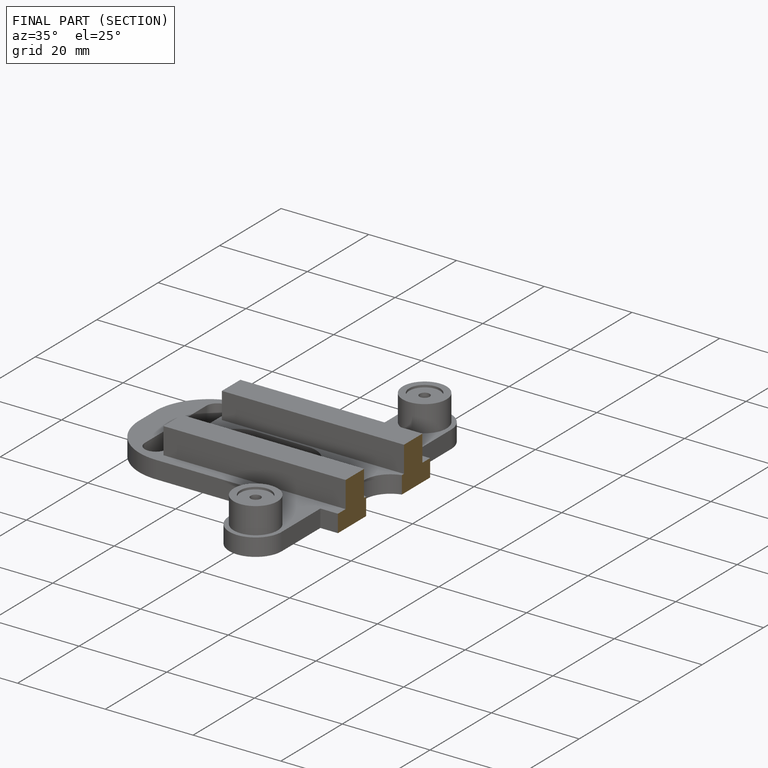
[diagram: finished part — half-section view (interior)]
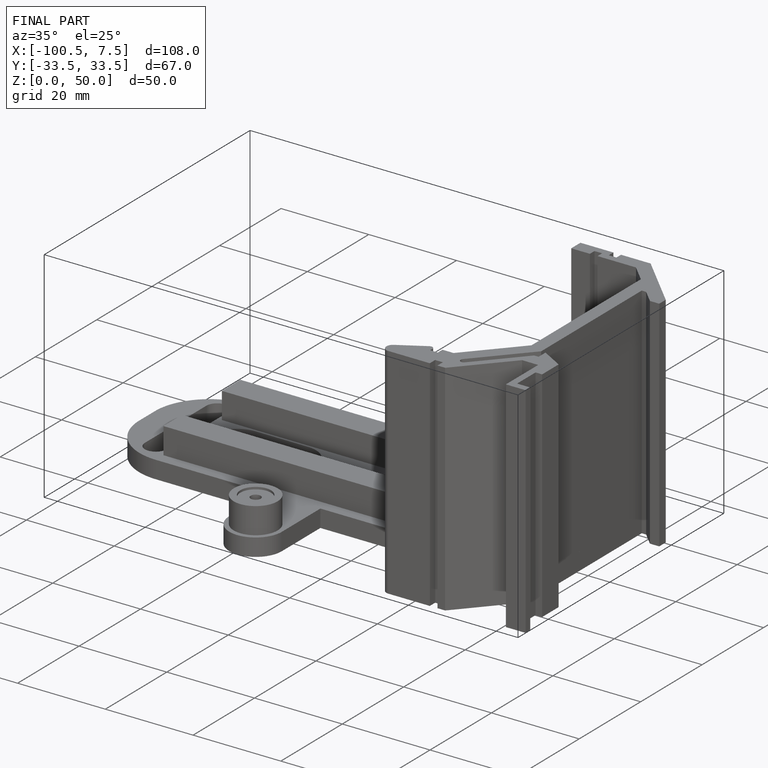
[diagram: finished part — iso view with bounding-box wireframe]
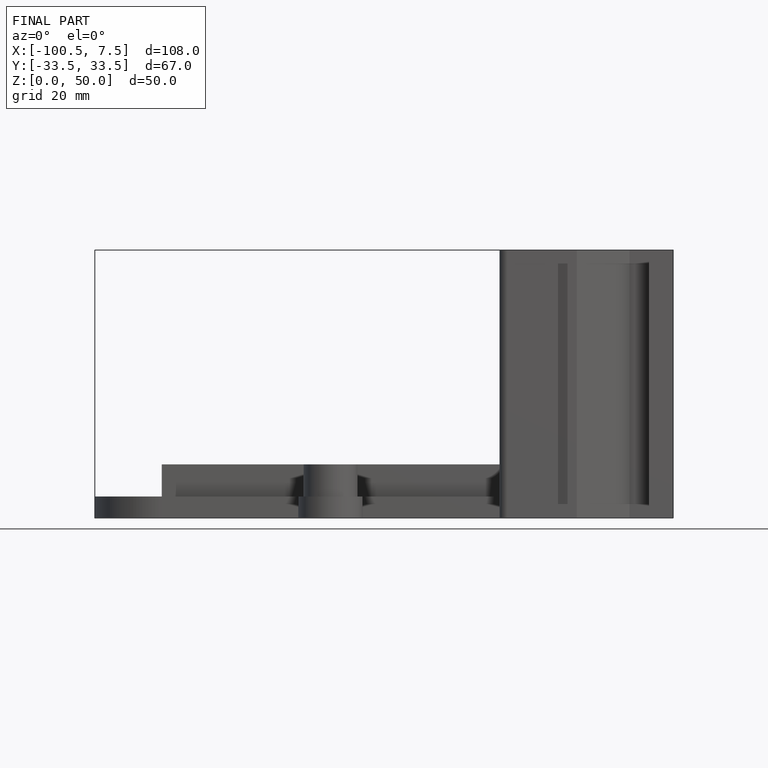
[diagram: finished part — front view with bounding-box wireframe]
